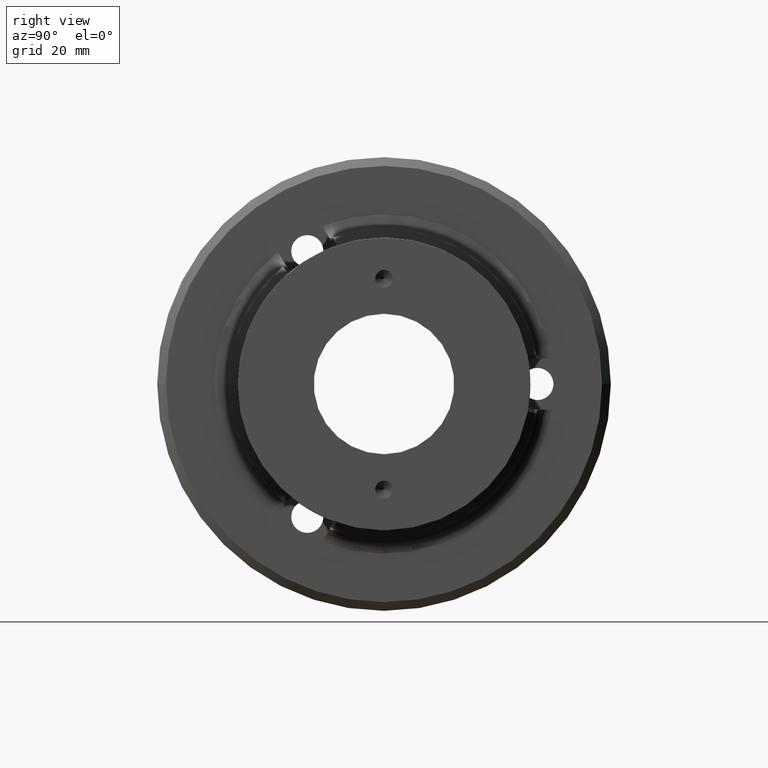
[diagram: clean part render]
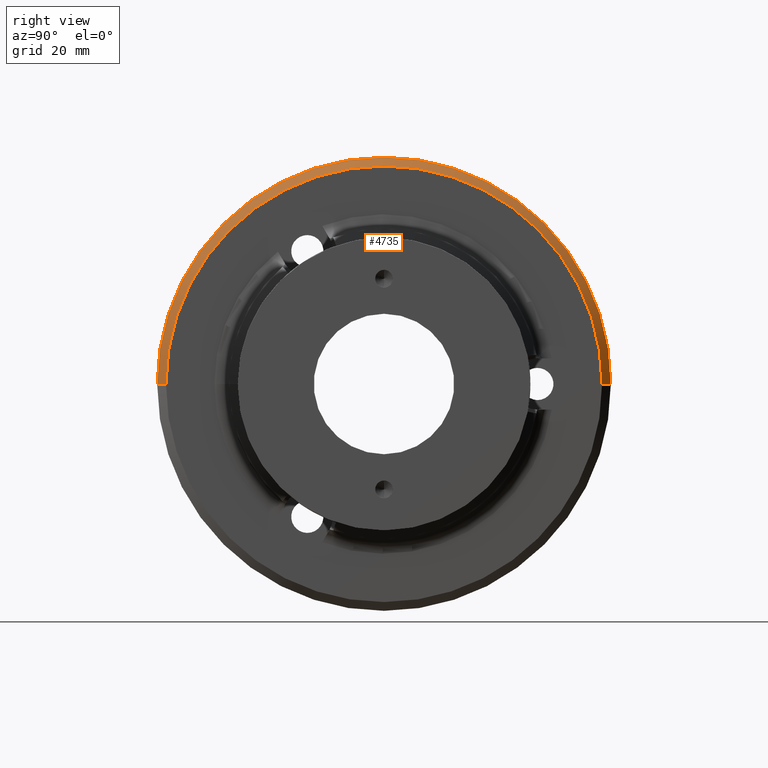
[diagram: same view with one face highlighted and labeled with its STEP entity id]
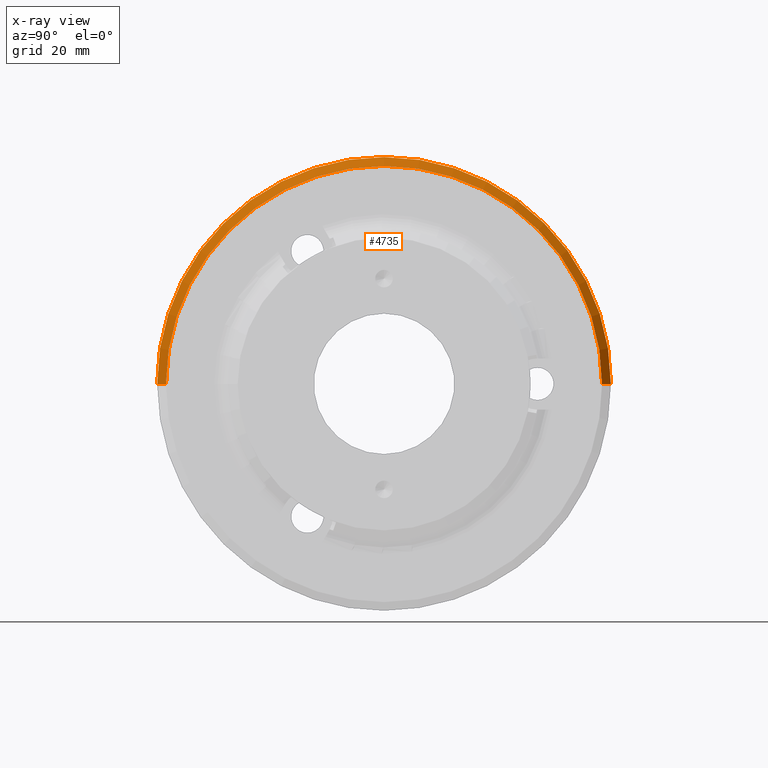
[diagram: x-ray of the same camera — body ghosted, the highlighted face saturated]
A machine part, right view. The second image highlights one B-rep face of the part: STEP entity #4735.
The next image is the same camera in x-ray: the body ghosted, the highlighted face saturated — about 0% of this face is hidden behind the body in this view.
In plain terms, the highlighted conical surface has half-angle 45 deg.
Its self-contained STEP definition (entity closure, byte-faithful):
#454 = CIRCLE ( 'NONE', #544, 0.07749999999999999900 ) ;
#474 = VECTOR ( 'NONE', #2392, 1.000000000000000000 ) ;
#544 = AXIS2_PLACEMENT_3D ( 'NONE', #2394, #2395, #2396 ) ;
#550 = VECTOR ( 'NONE', #2378, 1.000000000000000000 ) ;
#737 = EDGE_LOOP ( 'NONE', ( #2036, #2035, #2034, #4263 ) ) ;
#1681 = CARTESIAN_POINT ( 'NONE',  ( 0.02300000000000000000, -1.947988813942576200E-034, 0.0000000000000000000 ) ) ;
#1682 = DIRECTION ( 'NONE',  ( 1.000000000000000000, -8.469516582359026300E-033, 0.0000000000000000000 ) ) ;
#1683 = DIRECTION ( 'NONE',  ( 0.0000000000000000000, -1.000000000000000000, 0.0000000000000000000 ) ) ;
#2034 = ORIENTED_EDGE ( 'NONE', *, *, #3668, .F. ) ;
#2035 = ORIENTED_EDGE ( 'NONE', *, *, #3662, .T. ) ;
#2036 = ORIENTED_EDGE ( 'NONE', *, *, #4579, .F. ) ;
#2370 = LINE ( 'NONE', #2376, #550 ) ;
#2376 = CARTESIAN_POINT ( 'NONE',  ( 0.01999999999999996900, 0.07749999999999999900, 9.491012693391987900E-018 ) ) ;
#2378 = DIRECTION ( 'NONE',  ( -0.7071067811865492400, 0.7071067811865459100, 8.659560562354914400E-017 ) ) ;
#2385 = LINE ( 'NONE', #2391, #474 ) ;
#2391 = CARTESIAN_POINT ( 'NONE',  ( 0.01999999999999996900, -0.07749999999999999900, 0.0000000000000000000 ) ) ;
#2392 = DIRECTION ( 'NONE',  ( -0.7071067811865492400, -0.7071067811865459100, 0.0000000000000000000 ) ) ;
#2394 = CARTESIAN_POINT ( 'NONE',  ( 0.01999999999999996900, -1.693903316471802700E-034, 0.0000000000000000000 ) ) ;
#2395 = DIRECTION ( 'NONE',  ( -1.000000000000000000, 8.469516582359031800E-033, -0.0000000000000000000 ) ) ;
#2396 = DIRECTION ( 'NONE',  ( 0.0000000000000000000, -1.000000000000000000, 0.0000000000000000000 ) ) ;
#3662 = EDGE_CURVE ( 'NONE', #5394, #5310, #2370, .T. ) ;
#3667 = EDGE_CURVE ( 'NONE', #5468, #5228, #2385, .T. ) ;
#3668 = EDGE_CURVE ( 'NONE', #5228, #5310, #454, .T. ) ;
#3943 = CIRCLE ( 'NONE', #4125, 0.07449999999999998300 ) ;
#4125 = AXIS2_PLACEMENT_3D ( 'NONE', #1681, #1682, #1683 ) ;
#4263 = ORIENTED_EDGE ( 'NONE', *, *, #3667, .F. ) ;
#4579 = EDGE_CURVE ( 'NONE', #5394, #5468, #3943, .T. ) ;
#4735 = ADVANCED_FACE ( 'NONE', ( #5864 ), #5503, .T. ) ;
#5228 = VERTEX_POINT ( 'NONE', #6578 ) ;
#5310 = VERTEX_POINT ( 'NONE', #6597 ) ;
#5394 = VERTEX_POINT ( 'NONE', #6622 ) ;
#5468 = VERTEX_POINT ( 'NONE', #6647 ) ;
#5502 = AXIS2_PLACEMENT_3D ( 'NONE', #5867, #5865, #5861 ) ;
#5503 = CONICAL_SURFACE ( 'NONE', #5502, 0.07749999999999999900, 0.7853981633974459500 ) ;
#5861 = DIRECTION ( 'NONE',  ( 0.0000000000000000000, -1.000000000000000000, 0.0000000000000000000 ) ) ;
#5864 = FACE_OUTER_BOUND ( 'NONE', #737, .T. ) ;
#5865 = DIRECTION ( 'NONE',  ( -1.000000000000000000, 8.469516582359031800E-033, -0.0000000000000000000 ) ) ;
#5867 = CARTESIAN_POINT ( 'NONE',  ( 0.01999999999999996900, -1.693903316471802700E-034, 0.0000000000000000000 ) ) ;
#6578 = CARTESIAN_POINT ( 'NONE',  ( 0.01999999999999996900, -0.07749999999999999900, 0.0000000000000000000 ) ) ;
#6597 = CARTESIAN_POINT ( 'NONE',  ( 0.01999999999999996900, 0.07749999999999999900, 9.491012693391987900E-018 ) ) ;
#6622 = CARTESIAN_POINT ( 'NONE',  ( 0.02300000000000000000, 0.07449999999999998300, 9.307315673519883800E-018 ) ) ;
#6647 = CARTESIAN_POINT ( 'NONE',  ( 0.02300000000000000000, -0.07449999999999998300, 0.0000000000000000000 ) ) ;